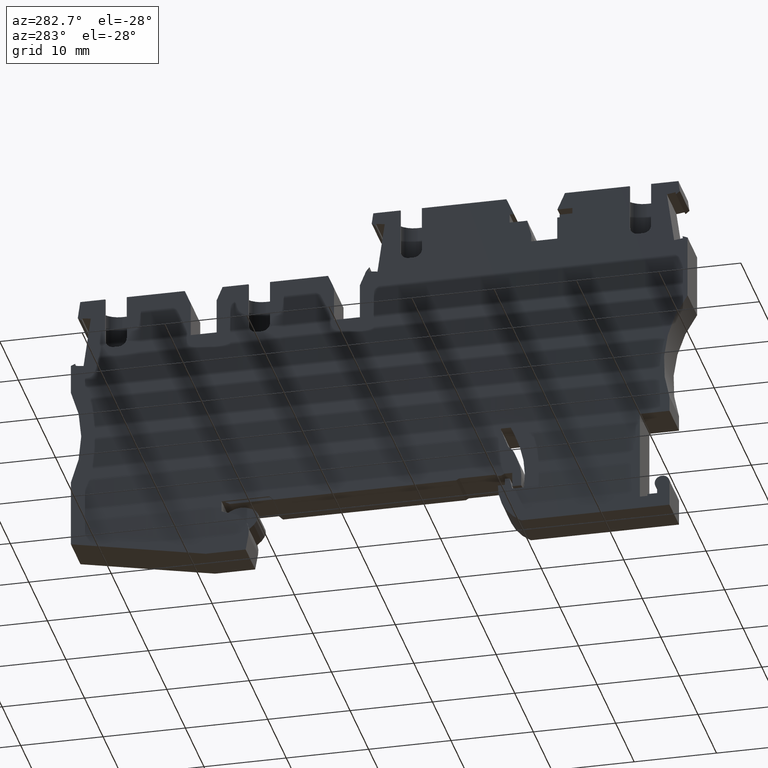
[diagram: clean part render]
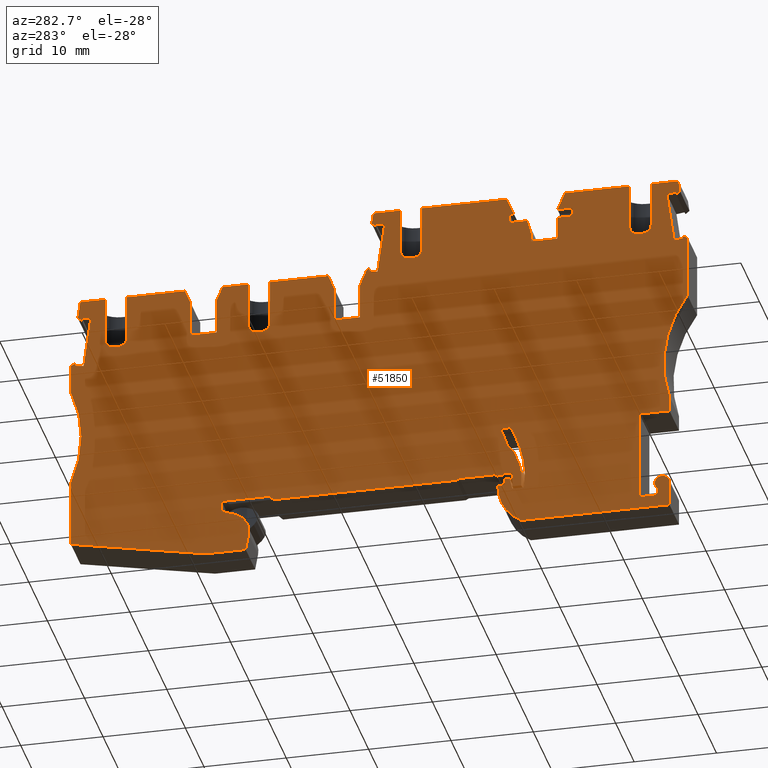
[diagram: same view with one face highlighted and labeled with its STEP entity id]
A machine part, auxiliary view. The second image highlights one B-rep face of the part: STEP entity #51850.
In plain terms, the highlighted planar face has unit normal (-1, 0, -0).
Its self-contained STEP definition (entity closure, byte-faithful):
#670=CARTESIAN_POINT('',(-66.3072917772299,-39.0656998965543,
-1.18280551835652E-12));
#680=VERTEX_POINT('',#670);
#710=CARTESIAN_POINT('',(-76.7749145163171,-6.13186605941077E-11,
-1.42922674073234E-11));
#720=DIRECTION('',(0.258819045104029,-0.965925826288664,
3.24141008728373E-13));
#730=VECTOR('',#720,1.);
#740=LINE('',#710,#730);
#750=CARTESIAN_POINT('',(-67.2464859922436,-35.56057936797,
-2.35982149020631E-12));
#760=VERTEX_POINT('',#750);
#770=EDGE_CURVE('',#760,#680,#740,.T.);
#2160=CARTESIAN_POINT('',(-54.3336256022456,-10.2892881446672,
-1.52343763263781E-11));
#2170=DIRECTION('',(-2.2329608464794E-13,-3.95395672264378E-13,-1.));
#2180=DIRECTION('',(-1.,-1.20342624754661E-12,2.23296084648413E-13));
#2190=AXIS2_PLACEMENT_3D('',#2160,#2170,#2180);
#2200=CIRCLE('',#2190,2.60000000000005);
#2210=CARTESIAN_POINT('',(-51.9772253559505,-9.19048066413703,
-1.619559666754E-11));
#2220=VERTEX_POINT('',#2210);
#2230=CARTESIAN_POINT('',(-52.8423268677303,-12.4190834598169,
-1.47296452839668E-11));
#2240=VERTEX_POINT('',#2230);
#2250=EDGE_CURVE('',#2220,#2240,#2200,.T.);
#3260=CARTESIAN_POINT('',(-4.15699391726855,-39.1542693222888,
-1.50280952131816E-11));
#3270=VERTEX_POINT('',#3260);
#3420=CARTESIAN_POINT('',(9.13878576315922,-35.5916758941949,
-1.94037969802458E-11));
#3430=VERTEX_POINT('',#3420);
#3460=CARTESIAN_POINT('',(6.37588169763637E-11,-38.0404061592044,
-1.6394793251507E-11));
#3470=DIRECTION('',(0.965925826289412,0.258819045101239,
-3.18058962365716E-13));
#3480=VECTOR('',#3470,1.);
#3490=LINE('',#3460,#3480);
#3500=CARTESIAN_POINT('',(5.951753717188,-36.4456385571605,
-1.83544462723363E-11));
#3510=VERTEX_POINT('',#3500);
#3520=EDGE_CURVE('',#3510,#3430,#3490,.T.);
#3920=CARTESIAN_POINT('',(3.44034656883546,-37.1185680744237,
-1.75275493880379E-11));
#3930=VERTEX_POINT('',#3920);
#3960=CARTESIAN_POINT('',(6.37588169763637E-11,-38.0404061592044,
-1.6394793251507E-11));
#3970=DIRECTION('',(0.965925826289412,0.258819045101239,
-3.18058962365716E-13));
#3980=VECTOR('',#3970,1.);
#3990=LINE('',#3960,#3980);
#4000=EDGE_CURVE('',#3270,#3930,#3990,.T.);
#4170=CARTESIAN_POINT('',(0.,-30.0170157611494,-1.95672070917712E-11));
#4180=DIRECTION('',(0.965925826288665,0.258819045104028,
-3.18051140979492E-13));
#4190=VECTOR('',#4180,1.);
#4200=LINE('',#4170,#4190);
#4210=CARTESIAN_POINT('',(-57.583569031116,-45.4464865804351,
-6.06969709237701E-13));
#4220=VERTEX_POINT('',#4210);
#4230=CARTESIAN_POINT('',(-50.7675131667754,-43.6201299160082,
-2.85223652573435E-12));
#4240=VERTEX_POINT('',#4230);
#4250=EDGE_CURVE('',#4220,#4240,#4200,.T.);
#5450=CARTESIAN_POINT('',(-47.9363982468284,-12.5797066825178,
-1.57580845669676E-11));
#5460=VERTEX_POINT('',#5450);
#5910=CARTESIAN_POINT('',(-48.2899516374167,-13.192079118207,
-1.54367570980591E-11));
#5920=VERTEX_POINT('',#5910);
#5950=CARTESIAN_POINT('',(-40.6735012073708,5.28754401036993E-12,
-2.23535716494944E-11));
#5960=DIRECTION('',(0.49999999999878,0.866025403785143,
-4.54088195967764E-13));
#5970=VECTOR('',#5960,1.);
#5980=LINE('',#5950,#5970);
#5990=EDGE_CURVE('',#5920,#5460,#5980,.T.);
#6220=CARTESIAN_POINT('',(-63.8656927570644,-44.9430246976713,
5.95830993172289E-13));
#6230=VERTEX_POINT('',#6220);
#6420=CARTESIAN_POINT('',(-63.0322639274252,-46.9064599777138,
1.1860808690825E-12));
#6430=VERTEX_POINT('',#6420);
#6460=CARTESIAN_POINT('',(-82.9428749055648,-7.11296915247856E-11,
-1.29149860021369E-11));
#6470=DIRECTION('',(0.390731128490712,-0.92050485345183,
2.76703240215985E-13));
#6480=VECTOR('',#6470,1.);
#6490=LINE('',#6460,#6480);
#6500=EDGE_CURVE('',#6230,#6430,#6490,.T.);
#7980=CARTESIAN_POINT('',(-3.10592597299104,5.95482209623501,
-3.30969461049493E-11));
#7990=VERTEX_POINT('',#7980);
#8140=CARTESIAN_POINT('',(-20.497773495418,1.29469059768784,
-3.10920926378808E-11));
#8150=VERTEX_POINT('',#8140);
#8180=CARTESIAN_POINT('',(-7.54074693560925E-12,6.78705245245173,
-3.41193763851504E-11));
#8190=DIRECTION('',(-0.965925826288685,-0.258819045103954,
3.18058962368318E-13));
#8200=VECTOR('',#8190,1.);
#8210=LINE('',#8180,#8200);
#8220=EDGE_CURVE('',#7990,#8150,#8210,.T.);
#9370=CARTESIAN_POINT('',(-64.8774223379133,-38.4646517066796,
-1.73969474311306E-12));
#9380=VERTEX_POINT('',#9370);
#9430=CARTESIAN_POINT('',(2.06321654972215E-11,-10.9258197835096,
-2.71157833596858E-11));
#9440=DIRECTION('',(0.920504853451815,0.390731128490748,
-3.60043747503421E-13));
#9450=VECTOR('',#9440,1.);
#9460=LINE('',#9430,#9450);
#9470=CARTESIAN_POINT('',(-65.8623625311059,-38.8827340141644,
-1.35341464411489E-12));
#9480=VERTEX_POINT('',#9470);
#9490=EDGE_CURVE('',#9480,#9380,#9460,.T.);
#10780=CARTESIAN_POINT('',(2.01684182076864,-31.805976029842,
-1.86857165166418E-11));
#10790=VERTEX_POINT('',#10780);
#10820=CARTESIAN_POINT('',(-6.50554377086673,5.04549122492993E-11,
-4.19169824378261E-11));
#10830=DIRECTION('',(0.258819045101239,-0.965925826289412,
7.34007593844418E-13));
#10840=VECTOR('',#10830,1.);
#10850=LINE('',#10820,#10840);
#10860=EDGE_CURVE('',#10790,#3930,#10850,.T.);
#11090=CARTESIAN_POINT('',(-40.7764596537313,-40.9430351956357,
-6.14071080705768E-12));
#11100=VERTEX_POINT('',#11090);
#11130=CARTESIAN_POINT('',(-51.7471128701437,-2.15083309905912E-11,
-3.72507935261071E-11));
#11140=DIRECTION('',(-0.258819045104028,0.965925826288665,
-7.34007593844365E-13));
#11150=VECTOR('',#11140,1.);
#11160=LINE('',#11130,#11150);
#11170=CARTESIAN_POINT('',(-42.1999644018032,-35.6304431510492,
-7.92357154240665E-12));
#11180=VERTEX_POINT('',#11170);
#11190=EDGE_CURVE('',#11100,#11180,#11160,.T.);
#11540=CARTESIAN_POINT('',(-6.19503037996405,3.57418479438963,
-3.14657990925556E-11));
#11550=VERTEX_POINT('',#11540);
#11720=CARTESIAN_POINT('',(-4.16658614475393,4.11770478910744,
-3.21335454988256E-11));
#11730=VERTEX_POINT('',#11720);
#11760=CARTESIAN_POINT('',(-5.07078513719505E-12,5.23413818179108,
-3.35053608031342E-11));
#11770=DIRECTION('',(-0.965925826288867,-0.258819045103273,
3.18058962367664E-13));
#11780=VECTOR('',#11770,1.);
#11790=LINE('',#11760,#11780);
#11800=EDGE_CURVE('',#11730,#11550,#11790,.T.);
#12110=CARTESIAN_POINT('',(-33.7063787310121,-37.2886432152284,
-9.16538833260796E-12));
#12120=VERTEX_POINT('',#12110);
#12150=CARTESIAN_POINT('',(-28.524722946667,0.,-2.50663462683634E-11));
#12160=DIRECTION('',(0.13763814783106,0.99048257948418,
-4.22370471930833E-13));
#12170=VECTOR('',#12160,1.);
#12180=LINE('',#12150,#12170);
#12190=CARTESIAN_POINT('',(-33.9604037893749,-39.1166785312046,
-8.38503877266139E-12));
#12200=VERTEX_POINT('',#12190);
#12210=EDGE_CURVE('',#12200,#12120,#12180,.T.);
#12610=CARTESIAN_POINT('',(-5.23733045071583,5.24721885165812E-11,
-3.02663298343898E-11));
#12620=DIRECTION('',(-0.25881904510403,0.965925826288664,
-3.24154886516181E-13));
#12630=VECTOR('',#12620,1.);
#12640=LINE('',#12610,#12630);
#12650=CARTESIAN_POINT('',(-3.32213897931943,-7.14759187737682,
-2.78676523120425E-11));
#12660=VERTEX_POINT('',#12650);
#12670=EDGE_CURVE('',#12660,#11550,#12640,.T.);
#13780=CARTESIAN_POINT('',(-51.626410002364,-37.6386135470398,
-5.02460355976195E-12));
#13790=VERTEX_POINT('',#13780);
#13820=CARTESIAN_POINT('',(-61.7116461065775,-3.73583588154697E-11,
-1.76558362652286E-11));
#13830=DIRECTION('',(-0.258819045104125,0.965925826288638,
-3.24154886516179E-13));
#13840=VECTOR('',#13830,1.);
#13850=LINE('',#13820,#13840);
#13860=CARTESIAN_POINT('',(-50.5134881084184,-41.7920946000732,
-3.63176375325995E-12));
#13870=VERTEX_POINT('',#13860);
#13880=EDGE_CURVE('',#13870,#13790,#13850,.T.);
#15800=CARTESIAN_POINT('',(-61.5184809275385,-40.8068240531189,
-1.56295509264935E-12));
#15810=VERTEX_POINT('',#15800);
#15840=CARTESIAN_POINT('',(-72.4526364783043,-5.4443453743595E-11,
-3.10070416566535E-11));
#15850=DIRECTION('',(0.258819045104028,-0.965925826288665,
7.34007593844365E-13));
#15860=VECTOR('',#15850,1.);
#15870=LINE('',#15840,#15860);
#15880=CARTESIAN_POINT('',(-60.0949761794666,-46.1194160977056,
2.19910429232437E-13));
#15890=VERTEX_POINT('',#15880);
#15900=EDGE_CURVE('',#15810,#15890,#15870,.T.);
#16250=CARTESIAN_POINT('',(7.37973791384048,-34.3941953010319,
-1.94843518828348E-11));
#16260=VERTEX_POINT('',#16250);
#16310=CARTESIAN_POINT('',(5.94006079540976E-11,-35.3003131790036,
-1.74782141574794E-11));
#16320=DIRECTION('',(-0.992546151663293,-0.121869343226213,
2.69815985351965E-13));
#16330=VECTOR('',#16320,1.);
#16340=LINE('',#16310,#16330);
#16350=CARTESIAN_POINT('',(8.44176229612051,-34.2637951037798,
-1.97730574577997E-11));
#16360=VERTEX_POINT('',#16350);
#16370=EDGE_CURVE('',#16360,#16260,#16340,.T.);
#16970=CARTESIAN_POINT('',(-57.8293604300129,-3.11830232992264E-11,
-1.85227354562927E-11));
#16980=DIRECTION('',(-0.258819045104057,0.965925826288657,
-3.24141008728372E-13));
#16990=VECTOR('',#16980,1.);
#17000=LINE('',#16970,#16990);
#17010=CARTESIAN_POINT('',(-53.8923214298844,-14.6932295798077,
-1.35922214627188E-11));
#17020=VERTEX_POINT('',#17010);
#17030=CARTESIAN_POINT('',(-54.2395331428368,-13.3974178260841,
-1.40266638355378E-11));
#17040=VERTEX_POINT('',#17030);
#17050=EDGE_CURVE('',#17020,#17040,#17000,.T.);
#17500=CARTESIAN_POINT('',(8.22392023425579,-27.8645245092209,
-2.22539965207364E-11));
#17510=VERTEX_POINT('',#17500);
#17660=CARTESIAN_POINT('',(6.2156364476726,-20.3695073817224,
-2.47702582245734E-11));
#17670=VERTEX_POINT('',#17660);
#17700=CARTESIAN_POINT('',(0.757643394469592,6.20080593899176E-11,
-3.16049840215903E-11));
#17710=DIRECTION('',(-0.258819045104028,0.965925826288665,
-3.24154886516181E-13));
#17720=VECTOR('',#17710,1.);
#17730=LINE('',#17700,#17720);
#17740=EDGE_CURVE('',#17510,#17670,#17730,.T.);
#18220=CARTESIAN_POINT('',(2.20320066644167E-11,-0.252825574344335,
-3.13358390800928E-11));
#18230=DIRECTION('',(0.965925826288704,0.258819045103883,
-3.18037263192438E-13));
#18240=VECTOR('',#18230,1.);
#18250=LINE('',#18220,#18240);
#18260=EDGE_CURVE('',#17020,#5920,#18250,.T.);
#18470=CARTESIAN_POINT('',(-65.7559634670107,-39.1333945010332,
-1.27915241294333E-12));
#18480=VERTEX_POINT('',#18470);
#18530=CARTESIAN_POINT('',(7.83389259262135E-11,-47.2072116015176,
-1.27702780511301E-11));
#18540=DIRECTION('',(0.992546151642362,-0.121869343396678,
-1.73433008744903E-13));
#18550=VECTOR('',#18540,1.);
#18560=LINE('',#18530,#18550);
#18570=EDGE_CURVE('',#680,#18480,#18560,.T.);
#18900=CARTESIAN_POINT('',(-29.9986944722451,1.30856663974548E-11,
-2.47372141978244E-11));
#18910=DIRECTION('',(-0.601815023152154,-0.798635510047214,
4.50205637892676E-13));
#18920=VECTOR('',#18910,1.);
#18930=LINE('',#18900,#18920);
#18940=CARTESIAN_POINT('',(-63.497387207508,-44.4542667253587,
3.20332673143683E-13));
#18950=VERTEX_POINT('',#18940);
#18960=EDGE_CURVE('',#18950,#6230,#18930,.T.);
#20690=CARTESIAN_POINT('',(-82.3671039055547,-7.02138446753257E-11,
-1.30435534120933E-11));
#20700=DIRECTION('',(-0.390731128491066,0.92050485345168,
-2.76730995791544E-13));
#20710=VECTOR('',#20700,1.);
#20720=LINE('',#20690,#20710);
#20730=EDGE_CURVE('',#18480,#9480,#20720,.T.);
#21050=CARTESIAN_POINT('',(-29.480481261624,-37.9926777771836,
-9.83221835022751E-12));
#21060=VERTEX_POINT('',#21050);
#21090=CARTESIAN_POINT('',(-59.0689021885233,-3.31546933108906E-11,
-1.8245950634859E-11));
#21100=DIRECTION('',(0.614439422298695,-0.788964001919762,
1.74742521169848E-13));
#21110=VECTOR('',#21100,1.);
#21120=LINE('',#21090,#21110);
#21130=CARTESIAN_POINT('',(-30.6637123782411,-36.4733632230008,
-1.01673083318337E-11));
#21140=VERTEX_POINT('',#21130);
#21150=EDGE_CURVE('',#21140,#21060,#21120,.T.);
#21520=CARTESIAN_POINT('',(-29.1793945218323,-37.8599577219028,
-9.95028167847463E-12));
#21530=VERTEX_POINT('',#21520);
#21560=CARTESIAN_POINT('',(-45.2499931176275,-1.11737246005319E-11,
-2.13316589245045E-11));
#21570=DIRECTION('',(-0.390731128491166,0.920504853451638,
-2.76730995791529E-13));
#21580=VECTOR('',#21570,1.);
#21590=LINE('',#21560,#21580);
#21600=CARTESIAN_POINT('',(-28.9603630326207,-38.3759635739488,
-9.79480696546769E-12));
#21610=VERTEX_POINT('',#21600);
#21620=EDGE_CURVE('',#21610,#21530,#21590,.T.);
#21890=CARTESIAN_POINT('',(-28.1944543286396,-37.4418754144181,
-1.03342765742764E-11));
#21900=VERTEX_POINT('',#21890);
#21950=CARTESIAN_POINT('',(4.37715929906632E-11,-25.4740395950685,
-2.13634802070496E-11));
#21960=DIRECTION('',(0.920504853451834,0.390731128490704,
-3.60071503078993E-13));
#21970=VECTOR('',#21960,1.);
#21980=LINE('',#21950,#21970);
#21990=EDGE_CURVE('',#21530,#21900,#21980,.T.);
#22510=CARTESIAN_POINT('',(-25.7230799409385,-43.2640686124993,
-8.58382748304589E-12));
#22520=VERTEX_POINT('',#22510);
#22570=CARTESIAN_POINT('',(-44.0875875137703,-9.3247507722764E-12,
-2.15912195446193E-11));
#22580=DIRECTION('',(0.390731128490453,-0.92050485345194,
2.76730995791642E-13));
#22590=VECTOR('',#22580,1.);
#22600=LINE('',#22570,#22590);
#22610=EDGE_CURVE('',#21900,#22520,#22600,.T.);
#22850=CARTESIAN_POINT('',(-15.6289151259346,3.59428737620542E-11,
-2.79459296631194E-11));
#22860=DIRECTION('',(0.258819045101127,-0.965925826289442,
3.24154886516235E-13));
#22870=VECTOR('',#22860,1.);
#22880=LINE('',#22850,#22870);
#22890=CARTESIAN_POINT('',(-6.62478906012128,-33.6038559555285,
-1.66696965430695E-11));
#22900=VERTEX_POINT('',#22890);
#22910=CARTESIAN_POINT('',(-5.8936252577333,-36.3325964147114,
-1.57540303890844E-11));
#22920=VERTEX_POINT('',#22910);
#22930=EDGE_CURVE('',#22900,#22920,#22880,.T.);
#23700=CARTESIAN_POINT('',(7.70412465115847,-28.2562185759363,
-2.19830961256061E-11));
#23710=VERTEX_POINT('',#23700);
#23760=CARTESIAN_POINT('',(4.23469726573012,6.75388152517806E-11,
-3.23813965371549E-11));
#23770=DIRECTION('',(0.121869343225106,-0.992546151663429,
3.65229029105853E-13));
#23780=VECTOR('',#23770,1.);
#23790=LINE('',#23760,#23780);
#23800=CARTESIAN_POINT('',(7.67093870021586,-27.9859406945126,
-2.20831270400946E-11));
#23810=VERTEX_POINT('',#23800);
#23820=EDGE_CURVE('',#23810,#23710,#23790,.T.);
#24180=CARTESIAN_POINT('',(-9.66745541293137,-34.4191359476067,
-1.5667922879047E-11));
#24190=VERTEX_POINT('',#24180);
#24220=CARTESIAN_POINT('',(-18.8900350942248,3.0755591928448E-11,
-2.72177343426309E-11));
#24230=DIRECTION('',(-0.258819045101132,0.965925826289441,
-3.24141008728427E-13));
#24240=VECTOR('',#24230,1.);
#24250=LINE('',#24220,#24240);
#24260=CARTESIAN_POINT('',(-9.41925452369259,-35.3454342767359,
-1.5357090815252E-11));
#24270=VERTEX_POINT('',#24260);
#24280=EDGE_CURVE('',#24270,#24190,#24250,.T.);
#24720=CARTESIAN_POINT('',(-82.0786849123782,-33.3231980429492,
6.8049416111935E-14));
#24730=DIRECTION('',(-2.23296203822727E-13,-3.95395569460147E-13,-1.));
#24740=DIRECTION('',(0.965925826287002,0.258819045110233,
-3.18023385406397E-13));
#24750=AXIS2_PLACEMENT_3D('',#24720,#24730,#24740);
#24760=CIRCLE('',#24750,14.9999999999998);
#24770=CARTESIAN_POINT('',(-70.3523145390098,-23.9694694886998,
-6.24898433322459E-12));
#24780=VERTEX_POINT('',#24770);
#24790=EDGE_CURVE('',#24780,#760,#24760,.T.);
#25460=CARTESIAN_POINT('',(-26.8144191982348,-43.4314904330974,
-8.27524087026391E-12));
#25470=VERTEX_POINT('',#25460);
#25520=CARTESIAN_POINT('',(-45.2499931175529,-1.11737246004133E-11,
-2.13316589245212E-11));
#25530=DIRECTION('',(-0.390731128489717,0.920504853452253,
-2.76703240216144E-13));
#25540=VECTOR('',#25530,1.);
#25550=LINE('',#25520,#25540);
#25560=CARTESIAN_POINT('',(-26.7080201341325,-43.6821509199839,
-8.20007816595971E-12));
#25570=VERTEX_POINT('',#25560);
#25580=EDGE_CURVE('',#25570,#25470,#25550,.T.);
#26940=CARTESIAN_POINT('',(-23.5975301643985,-37.6340501375103,
-1.12862541157936E-11));
#26950=VERTEX_POINT('',#26940);
#27460=CARTESIAN_POINT('',(5.47005118723648E-11,-32.3452689821722,
-1.86466258442555E-11));
#27470=DIRECTION('',(-0.920504853452067,-0.390731128490155,
3.60071503078448E-13));
#27480=VECTOR('',#27470,1.);
#27490=LINE('',#27460,#27480);
#27500=EDGE_CURVE('',#22520,#25570,#27490,.T.);
#27730=CARTESIAN_POINT('',(-24.1770856601667,-37.7893415645738,
-1.10956632910058E-11));
#27740=VERTEX_POINT('',#27730);
#31060=CARTESIAN_POINT('',(-27.1827247478039,-43.9202484054269,
-7.99841824241426E-12));
#31070=VERTEX_POINT('',#31060);
#31220=CARTESIAN_POINT('',(-26.6477197686101,-45.1806411513829,
-7.6194797115734E-12));
#31230=VERTEX_POINT('',#31220);
#31260=CARTESIAN_POINT('',(-45.8257641176508,-1.20895714500129E-11,
-2.12030915145451E-11));
#31270=DIRECTION('',(0.390731128490663,-0.920504853451851,
2.76730995791608E-13));
#31280=VECTOR('',#31270,1.);
#31290=LINE('',#31260,#31280);
#31300=EDGE_CURVE('',#31070,#31230,#31290,.T.);
#31470=CARTESIAN_POINT('',(5.91355631969951,7.0209282807872E-11,
-3.2756279190583E-11));
#31480=DIRECTION('',(-0.601815023152285,-0.798635510047115,
4.5020563789256E-13));
#31490=VECTOR('',#31480,1.);
#31500=LINE('',#31470,#31490);
#31510=EDGE_CURVE('',#25470,#31070,#31500,.T.);
#32740=CARTESIAN_POINT('',(-43.4247092731898,-34.9233363698867,
-7.93070159872241E-12));
#32750=VERTEX_POINT('',#32740);
#33680=CARTESIAN_POINT('',(-20.949280544935,-43.6537489632777,
-9.49615510115022E-12));
#33690=VERTEX_POINT('',#33680);
#33720=CARTESIAN_POINT('',(-32.6462673263058,8.87431977340746E-12,
-4.26688768891587E-11));
#33730=DIRECTION('',(-0.258819045103907,0.965925826288697,
-7.34007593844368E-13));
#33740=VECTOR('',#33730,1.);
#33750=LINE('',#33720,#33740);
#33760=CARTESIAN_POINT('',(-22.3727852930111,-38.3411569186726,
-1.12790206230381E-11));
#33770=VERTEX_POINT('',#33760);
#33780=EDGE_CURVE('',#33690,#33770,#33750,.T.);
#34020=CARTESIAN_POINT('',(-35.5516625542373,4.25286946437677E-12,
-2.34972581669371E-11));
#34030=DIRECTION('',(0.625560376221025,-0.780175759494109,
1.68784405251471E-13));
#34040=VECTOR('',#34030,1.);
#34050=LINE('',#34020,#34040);
#34060=CARTESIAN_POINT('',(-5.59534043802425,-37.3604167512145,
-1.54161098537917E-11));
#34070=VERTEX_POINT('',#34060);
#34080=EDGE_CURVE('',#34070,#3270,#34050,.T.);
#34630=CARTESIAN_POINT('',(-3.06325047185437,5.59303764056541E-11,
-3.07517933813825E-11));
#34640=DIRECTION('',(-0.258819045103274,0.965925826288867,
-3.24154886516195E-13));
#34650=VECTOR('',#34640,1.);
#34660=LINE('',#34630,#34650);
#34670=CARTESIAN_POINT('',(-3.92609676620693,3.22018620969219,
-3.18323707329678E-11));
#34680=VERTEX_POINT('',#34670);
#34690=EDGE_CURVE('',#34680,#11730,#34660,.T.);
#34950=CARTESIAN_POINT('',(9.82368752660702E-11,-59.7174494143392,
-7.82378416094665E-12));
#34960=DIRECTION('',(0.805025689294699,-0.593239951095335,
5.47969599890905E-14));
#34970=VECTOR('',#34960,1.);
#34980=LINE('',#34950,#34970);
#34990=EDGE_CURVE('',#21060,#21610,#34980,.T.);
#35200=CARTESIAN_POINT('',(-48.5837436495426,-36.8233335549484,
-6.02745875754752E-12));
#35210=VERTEX_POINT('',#35200);
#35240=CARTESIAN_POINT('',(4.11175004914816E-11,-23.805358678514,
-2.20232694198449E-11));
#35250=DIRECTION('',(0.965925826287837,0.258819045107118,
-3.18072840159158E-13));
#35260=VECTOR('',#35250,1.);
#35270=LINE('',#35240,#35260);
#35280=EDGE_CURVE('',#13790,#35210,#35270,.T.);
#35520=CARTESIAN_POINT('',(-56.2628168717692,-2.05741352510624E-11,
-1.88720173931634E-11));
#35530=DIRECTION('',(-0.422618261741977,0.906307787036055,
-2.63981173585861E-13));
#35540=VECTOR('',#35530,1.);
#35550=LINE('',#35520,#35540);
#35560=CARTESIAN_POINT('',(-52.8270967988237,-7.36792547335862,
-1.67264583720757E-11));
#35570=VERTEX_POINT('',#35560);
#35580=EDGE_CURVE('',#2220,#35570,#35550,.T.);
#36300=CARTESIAN_POINT('',(-1.51033620123954,5.84005106121339E-11,
-3.10985530578056E-11));
#36310=DIRECTION('',(0.25881904510403,-0.965925826288664,
3.24154886516181E-13));
#36320=VECTOR('',#36310,1.);
#36330=LINE('',#36300,#36320);
#36340=CARTESIAN_POINT('',(-2.30358693315759,2.96045203469923,
-3.20920582653293E-11));
#36350=VERTEX_POINT('',#36340);
#36360=EDGE_CURVE('',#7990,#36350,#36330,.T.);
#37260=CARTESIAN_POINT('',(-23.4606876932862,-44.3266784805459,
-8.66987454040216E-12));
#37270=VERTEX_POINT('',#37260);
#37440=CARTESIAN_POINT('',(-24.8841924413642,-39.0140864359435,
-8.14265637588515E-12));
#37450=VERTEX_POINT('',#37440);
#37480=CARTESIAN_POINT('',(-35.3379853953719,4.59275381551158E-12,
-3.85377288670374E-11));
#37490=DIRECTION('',(0.258819045103907,-0.965925826288697,
7.34007593844368E-13));
#37500=VECTOR('',#37490,1.);
#37510=LINE('',#37480,#37500);
#37520=EDGE_CURVE('',#37450,#37270,#37510,.T.);
#37780=CARTESIAN_POINT('',(-40.4367205992762,-3.51752018689008E-12,
-2.24064438321989E-11));
#37790=DIRECTION('',(-0.258819045107117,0.965925826287837,
-3.24127130940507E-13));
#37800=VECTOR('',#37790,1.);
#37810=LINE('',#37780,#37800);
#37820=CARTESIAN_POINT('',(-31.7766342721531,-32.3198821701446,
-1.1560152572021E-11));
#37830=VERTEX_POINT('',#37820);
#37840=EDGE_CURVE('',#21140,#37830,#37810,.T.);
#38320=CARTESIAN_POINT('',(-21.9491677461115,-4.27059022176907,
-2.64111756305503E-11));
#38330=VERTEX_POINT('',#38320);
#38360=CARTESIAN_POINT('',(-16.6412518939016,-2.6829669425937,
-2.6659323117793E-11));
#38370=DIRECTION('',(2.22104378111124E-13,-8.99016273766942E-13,-1.));
#38380=DIRECTION('',(0.965925826288657,0.258819045104057,
-1.8146090053739E-14));
#38390=AXIS2_PLACEMENT_3D('',#38360,#38370,#38380);
#38400=CIRCLE('',#38390,5.54026338459836);
#38410=EDGE_CURVE('',#38330,#8150,#38400,.T.);
#38930=CARTESIAN_POINT('',(6.37588169763253E-11,-38.0404061591803,
-1.63947932515166E-11));
#38940=DIRECTION('',(0.965925826288697,0.258819045103907,
-3.18045084580466E-13));
#38950=VECTOR('',#38940,1.);
#38960=LINE('',#38930,#38950);
#38970=EDGE_CURVE('',#31230,#37270,#38960,.T.);
#39120=CARTESIAN_POINT('',(-11.0337181041734,-40.9968820147683,
-1.27620119503425E-11));
#39130=VERTEX_POINT('',#39120);
#39160=CARTESIAN_POINT('',(6.37588169763253E-11,-38.0404061591803,
-1.63947932515166E-11));
#39170=DIRECTION('',(0.965925826288697,0.258819045103907,
-3.18045084580466E-13));
#39180=VECTOR('',#39170,1.);
#39190=LINE('',#39160,#39180);
#39200=EDGE_CURVE('',#33690,#39130,#39190,.T.);
#39510=CARTESIAN_POINT('',(-11.4718469045595,-37.8272764001842,
-1.39163583834706E-11));
#39520=VERTEX_POINT('',#39510);
#39550=CARTESIAN_POINT('',(-21.6076350678063,2.64328570670995E-11,
-2.66109049088892E-11));
#39560=DIRECTION('',(-0.258819045101127,0.965925826289442,
-3.24154886516235E-13));
#39570=VECTOR('',#39560,1.);
#39580=LINE('',#39550,#39570);
#39590=CARTESIAN_POINT('',(-11.1949105263014,-38.8608170343135,
-1.35695100001228E-11));
#39600=VERTEX_POINT('',#39590);
#39610=EDGE_CURVE('',#39600,#39520,#39580,.T.);
#40840=CARTESIAN_POINT('',(-2.76537139235481E-11,19.4324761512919,
-3.91193221896167E-11));
#40850=DIRECTION('',(-0.89879404629838,-0.438371146790693,
3.74055214397565E-13));
#40860=VECTOR('',#40850,1.);
#40870=LINE('',#40840,#40860);
#40880=CARTESIAN_POINT('',(-57.5358462978622,-8.62963109900643,
-1.51757160820912E-11));
#40890=VERTEX_POINT('',#40880);
#40900=CARTESIAN_POINT('',(-72.5061760776159,-15.9311487942036,
-8.94579677768582E-12));
#40910=VERTEX_POINT('',#40900);
#40920=EDGE_CURVE('',#40890,#40910,#40870,.T.);
#41320=CARTESIAN_POINT('',(-3.81382570180257,5.4736478207192E-11,
-4.60481304599442E-11));
#41330=DIRECTION('',(-0.258819045101239,0.965925826289412,
-7.34007593844418E-13));
#41340=VECTOR('',#41330,1.);
#41350=LINE('',#41320,#41340);
#41360=CARTESIAN_POINT('',(4.52824896911934,-31.1330465125721,
-2.07615699366275E-11));
#41370=VERTEX_POINT('',#41360);
#41380=EDGE_CURVE('',#3510,#41370,#41350,.T.);
#42680=CARTESIAN_POINT('',(-63.3909881434058,-44.7049272122453,
3.95757269175929E-13));
#42690=VERTEX_POINT('',#42680);
#42720=CARTESIAN_POINT('',(3.15610843789641E-11,-17.797049170639,
-2.43989289968814E-11));
#42730=DIRECTION('',(-0.920504853452046,-0.390731128490203,
3.60071503078495E-13));
#42740=VECTOR('',#42730,1.);
#42750=LINE('',#42720,#42740);
#42760=CARTESIAN_POINT('',(-62.4060479502118,-44.2868449047607,
1.05087694078477E-14));
#42770=VERTEX_POINT('',#42760);
#42780=EDGE_CURVE('',#42770,#42690,#42750,.T.);
#43850=CARTESIAN_POINT('',(3.30350409772378,-30.425939731388,
-2.05515757307838E-11));
#43860=VERTEX_POINT('',#43850);
#44130=CARTESIAN_POINT('',(5.38789697831116E-11,-31.8287490768162,
-1.88508555794714E-11));
#44140=DIRECTION('',(0.965925826288639,0.258819045104125,
-3.18058962368483E-13));
#44150=VECTOR('',#44140,1.);
#44160=LINE('',#44130,#44150);
#44170=EDGE_CURVE('',#24190,#22900,#44160,.T.);
#44870=CARTESIAN_POINT('',(-43.287866802082,-41.6159647129062,
-5.31377784051093E-12));
#44880=VERTEX_POINT('',#44870);
#45050=CARTESIAN_POINT('',(-44.7113715501555,-36.3033726683199,
-4.78712940374449E-12));
#45060=VERTEX_POINT('',#45050);
#45090=CARTESIAN_POINT('',(-54.4388309392101,-2.57898969484875E-11,
-3.31196455039854E-11));
#45100=DIRECTION('',(0.258819045104028,-0.965925826288665,
7.34007593844365E-13));
#45110=VECTOR('',#45100,1.);
#45120=LINE('',#45090,#45110);
#45130=EDGE_CURVE('',#45060,#44880,#45120,.T.);
#45390=CARTESIAN_POINT('',(-9.4192545237488,4.58202348980403E-11,
-2.9332522562584E-11));
#45400=DIRECTION('',(-1.59053326064381E-12,1.,-3.95395672264023E-13));
#45410=VECTOR('',#45400,1.);
#45420=LINE('',#45390,#45410);
#45430=CARTESIAN_POINT('',(-9.41925452368951,-37.2772859293366,
-1.45932450323576E-11));
#45440=VERTEX_POINT('',#45430);
#45450=EDGE_CURVE('',#45440,#24270,#45420,.T.);
#45850=CARTESIAN_POINT('',(-46.3368119438312,-42.4329271014098,
-4.30984932475406E-12));
#45860=VERTEX_POINT('',#45850);
#45960=CARTESIAN_POINT('',(0.,-30.0170157611499,-1.95672070917711E-11));
#45970=DIRECTION('',(0.965925826288664,0.258819045104028,
-3.18051140979492E-13));
#45980=VECTOR('',#45970,1.);
#45990=LINE('',#45960,#45980);
#46000=EDGE_CURVE('',#11100,#12200,#45990,.T.);
#46200=CARTESIAN_POINT('',(0.,-30.0170157611499,-1.95672070917711E-11));
#46210=DIRECTION('',(0.965925826288664,0.258819045104028,
-3.18051140979492E-13));
#46220=VECTOR('',#46210,1.);
#46230=LINE('',#46200,#46220);
#46240=EDGE_CURVE('',#45860,#44880,#46230,.T.);
#46530=CARTESIAN_POINT('',(-44.7060295888247,0.,-2.14531238506819E-11));
#46540=DIRECTION('',(0.137638147831061,0.99048257948418,
-4.22370471930833E-13));
#46550=VECTOR('',#46540,1.);
#46560=LINE('',#46530,#46550);
#46570=EDGE_CURVE('',#4240,#13870,#46560,.T.);
#46690=CARTESIAN_POINT('',(-14.5596329296552,-10.1719111404203,
-2.41627665473381E-11));
#46700=DIRECTION('',(-2.23296084647939E-13,-3.95395672264378E-13,-1.));
#46710=DIRECTION('',(0.965925826288657,0.258819045104057,
-3.18023385404325E-13));
#46720=AXIS2_PLACEMENT_3D('',#46690,#46700,#46710);
#46730=PLANE('',#46720);
#46740=ORIENTED_EDGE('',*,*,#46240,.F.);
#46750=ORIENTED_EDGE('',*,*,#45130,.T.);
#46760=CARTESIAN_POINT('',(-43.7454457238668,-36.0445536232159,
-7.4157579553821E-12));
#46770=DIRECTION('',(-2.34946865829076E-12,-1.38790441945422E-12,-1.));
#46780=DIRECTION('',(0.92718385456626,0.374606593417219,
-2.6983074813513E-12));
#46790=AXIS2_PLACEMENT_3D('',#46760,#46770,#46780);
#46800=CIRCLE('',#46790,1.);
#46810=CARTESIAN_POINT('',(-44.0042647689646,-35.0786277969256,
-8.14828344392953E-12));
#46820=VERTEX_POINT('',#46810);
#46830=EDGE_CURVE('',#45060,#46820,#46800,.T.);
#46840=ORIENTED_EDGE('',*,*,#46830,.F.);
#46850=CARTESIAN_POINT('',(4.02941798920465E-11,-23.2877205883165,
-2.22279412805079E-11));
#46860=DIRECTION('',(-0.965925826287668,-0.258819045107748,
3.18017329008744E-13));
#46870=VECTOR('',#46860,1.);
#46880=LINE('',#46850,#46870);
#46890=EDGE_CURVE('',#32750,#46820,#46880,.T.);
#46900=ORIENTED_EDGE('',*,*,#46890,.T.);
#46910=CARTESIAN_POINT('',(-43.1658902280936,-35.8892621961536,
-7.60657198662465E-12));
#46920=DIRECTION('',(-2.34946865829076E-12,-1.38790441945422E-12,-1.));
#46930=DIRECTION('',(0.92718385456626,0.374606593417219,
-2.6983074813513E-12));
#46940=AXIS2_PLACEMENT_3D('',#46910,#46920,#46930);
#46950=CIRCLE('',#46940,1.);
#46960=EDGE_CURVE('',#32750,#11180,#46950,.T.);
#46970=ORIENTED_EDGE('',*,*,#46960,.F.);
#46980=ORIENTED_EDGE('',*,*,#11190,.T.);
#46990=ORIENTED_EDGE('',*,*,#46000,.F.);
#47000=ORIENTED_EDGE('',*,*,#12210,.F.);
#47010=CARTESIAN_POINT('',(-43.6978405675726,-8.70480202050607E-12,
-2.16782485117091E-11));
#47020=DIRECTION('',(0.258819045107117,-0.965925826287837,
3.24127130940507E-13));
#47030=VECTOR('',#47020,1.);
#47040=LINE('',#47010,#47030);
#47050=CARTESIAN_POINT('',(-34.8193006249615,-33.1351621622326,
-1.05592919995131E-11));
#47060=VERTEX_POINT('',#47050);
#47070=EDGE_CURVE('',#47060,#12120,#47040,.T.);
#47080=ORIENTED_EDGE('',*,*,#47070,.T.);
#47090=CARTESIAN_POINT('',(4.11175004915692E-11,-23.805358678569,
-2.20232694198231E-11));
#47100=DIRECTION('',(0.965925826287837,0.258819045107117,
-3.18045084583541E-13));
#47110=VECTOR('',#47100,1.);
#47120=LINE('',#47090,#47110);
#47130=EDGE_CURVE('',#47060,#37830,#47120,.T.);
#47140=ORIENTED_EDGE('',*,*,#47130,.F.);
#47150=ORIENTED_EDGE('',*,*,#37840,.T.);
#47160=ORIENTED_EDGE('',*,*,#21150,.F.);
#47170=ORIENTED_EDGE('',*,*,#34990,.F.);
#47180=ORIENTED_EDGE('',*,*,#21620,.F.);
#47190=ORIENTED_EDGE('',*,*,#21990,.F.);
#47200=ORIENTED_EDGE('',*,*,#22610,.F.);
#47210=ORIENTED_EDGE('',*,*,#27500,.F.);
#47220=ORIENTED_EDGE('',*,*,#25580,.F.);
#47230=ORIENTED_EDGE('',*,*,#31510,.F.);
#47240=ORIENTED_EDGE('',*,*,#31300,.F.);
#47250=ORIENTED_EDGE('',*,*,#38970,.F.);
#47260=ORIENTED_EDGE('',*,*,#37520,.T.);
#47270=CARTESIAN_POINT('',(-23.9182666150755,-38.7552673908395,
-1.07712849275227E-11));
#47280=DIRECTION('',(-2.34946865829076E-12,-1.38790441945422E-12,-1.));
#47290=DIRECTION('',(0.92718385456626,0.374606593417219,
-2.6983074813513E-12));
#47300=AXIS2_PLACEMENT_3D('',#47270,#47280,#47290);
#47310=CIRCLE('',#47300,1.);
#47320=EDGE_CURVE('',#37450,#27740,#47310,.T.);
#47330=ORIENTED_EDGE('',*,*,#47320,.F.);
#47340=CARTESIAN_POINT('',(5.30556491833914E-11,-31.3111109864396,
-1.90555274402053E-11));
#47350=DIRECTION('',(-0.965925826287668,-0.258819045107748,
3.18017329008744E-13));
#47360=VECTOR('',#47350,1.);
#47370=LINE('',#47340,#47360);
#47380=EDGE_CURVE('',#26950,#27740,#47370,.T.);
#47390=ORIENTED_EDGE('',*,*,#47380,.T.);
#47400=CARTESIAN_POINT('',(-23.3387111193023,-38.5999759637772,
-1.09620989587654E-11));
#47410=DIRECTION('',(-2.34946865829076E-12,-1.38790441945422E-12,-1.));
#47420=DIRECTION('',(0.92718385456626,0.374606593417219,
-2.6983074813513E-12));
#47430=AXIS2_PLACEMENT_3D('',#47400,#47410,#47420);
#47440=CIRCLE('',#47430,1.);
#47450=EDGE_CURVE('',#26950,#33770,#47440,.T.);
#47460=ORIENTED_EDGE('',*,*,#47450,.F.);
#47470=ORIENTED_EDGE('',*,*,#33780,.T.);
#47480=ORIENTED_EDGE('',*,*,#39200,.F.);
#47490=CARTESIAN_POINT('',(-4.74322875707416,5.3258128550773E-11,
-3.03766608079982E-11));
#47500=DIRECTION('',(0.151663297665015,0.98843221524866,
-4.24692470536592E-13));
#47510=VECTOR('',#47500,1.);
#47520=LINE('',#47490,#47510);
#47530=CARTESIAN_POINT('',(-10.6849997632752,-38.7241868571495,
-1.37384941898327E-11));
#47540=VERTEX_POINT('',#47530);
#47550=EDGE_CURVE('',#39130,#47540,#47520,.T.);
#47560=ORIENTED_EDGE('',*,*,#47550,.F.);
#47570=CARTESIAN_POINT('',(6.02926372527106E-11,-35.8611497994537,
-1.72564617849063E-11));
#47580=DIRECTION('',(-0.965925826289446,-0.258819045101112,
3.18045084577787E-13));
#47590=VECTOR('',#47580,1.);
#47600=LINE('',#47570,#47590);
#47610=EDGE_CURVE('',#47540,#39600,#47600,.T.);
#47620=ORIENTED_EDGE('',*,*,#47610,.F.);
#47630=ORIENTED_EDGE('',*,*,#39610,.F.);
#47640=CARTESIAN_POINT('',(5.8530731169839E-11,-34.7534042863806,
-1.76944595667452E-11));
#47650=DIRECTION('',(0.965925826288698,0.258819045103906,
-3.18045084580464E-13));
#47660=VECTOR('',#47650,1.);
#47670=LINE('',#47640,#47660);
#47680=EDGE_CURVE('',#39520,#45440,#47670,.T.);
#47690=ORIENTED_EDGE('',*,*,#47680,.F.);
#47700=ORIENTED_EDGE('',*,*,#45450,.F.);
#47710=ORIENTED_EDGE('',*,*,#24280,.F.);
#47720=ORIENTED_EDGE('',*,*,#44170,.F.);
#47730=ORIENTED_EDGE('',*,*,#22930,.F.);
#47740=CARTESIAN_POINT('',(4.64720376031052E-11,-34.7534042863893,
-1.76944595667391E-11));
#47750=DIRECTION('',(-0.965925826288726,-0.258819045103798,
3.17981752040843E-13));
#47760=VECTOR('',#47750,1.);
#47770=LINE('',#47740,#47760);
#47780=CARTESIAN_POINT('',(-4.11873653778486,-35.8570164155436,
-1.63383983644204E-11));
#47790=VERTEX_POINT('',#47780);
#47800=EDGE_CURVE('',#47790,#22920,#47770,.T.);
#47810=ORIENTED_EDGE('',*,*,#47800,.T.);
#47820=CARTESIAN_POINT('',(-13.7265951293742,3.23194480952895E-11,
-2.83707102700974E-11));
#47830=DIRECTION('',(-0.258819045103683,0.965925826288757,
-3.24143489826743E-13));
#47840=VECTOR('',#47830,1.);
#47850=LINE('',#47820,#47840);
#47860=CARTESIAN_POINT('',(-3.84180015951896,-36.8905570496911,
-1.59905196409343E-11));
#47870=VERTEX_POINT('',#47860);
#47880=EDGE_CURVE('',#47870,#47790,#47850,.T.);
#47890=ORIENTED_EDGE('',*,*,#47880,.T.);
#47900=CARTESIAN_POINT('',(4.7805189121346E-11,-35.8611497994479,
-1.72564617849057E-11));
#47910=DIRECTION('',(0.965925826288724,0.258819045103805,
-3.1799562982865E-13));
#47920=VECTOR('',#47910,1.);
#47930=LINE('',#47900,#47920);
#47940=EDGE_CURVE('',#34070,#47870,#47930,.T.);
#47950=ORIENTED_EDGE('',*,*,#47940,.T.);
#47960=ORIENTED_EDGE('',*,*,#34080,.F.);
#47970=ORIENTED_EDGE('',*,*,#4000,.F.);
#47980=ORIENTED_EDGE('',*,*,#10860,.T.);
#47990=CARTESIAN_POINT('',(2.98276764705737,-31.5471569847382,
-1.96282362110134E-11));
#48000=DIRECTION('',(7.20812567123506E-13,9.51507335075469E-13,1.));
#48010=DIRECTION('',(-0.990268068741375,-0.139173100961461,
8.46221791472532E-13));
#48020=AXIS2_PLACEMENT_3D('',#47990,#48000,#48010);
#48030=CIRCLE('',#48020,1.);
#48040=CARTESIAN_POINT('',(2.72394860195411,-30.5812311584487,
-1.99523145713531E-11));
#48050=VERTEX_POINT('',#48040);
#48060=EDGE_CURVE('',#48050,#10790,#48030,.T.);
#48070=ORIENTED_EDGE('',*,*,#48060,.T.);
#48080=CARTESIAN_POINT('',(5.30556491835817E-11,-31.3111109865593,
-1.9055527440158E-11));
#48090=DIRECTION('',(0.965925826288424,0.258819045104927,
-3.18017329006039E-13));
#48100=VECTOR('',#48090,1.);
#48110=LINE('',#48080,#48100);
#48120=EDGE_CURVE('',#48050,#43860,#48110,.T.);
#48130=ORIENTED_EDGE('',*,*,#48120,.F.);
#48140=CARTESIAN_POINT('',(3.5623231428306,-31.3918655576759,
-1.98190502422559E-11));
#48150=DIRECTION('',(7.20812567123506E-13,9.51507335075469E-13,1.));
#48160=DIRECTION('',(-0.990268068741375,-0.139173100961461,
8.46221791472532E-13));
#48170=AXIS2_PLACEMENT_3D('',#48140,#48150,#48160);
#48180=CIRCLE('',#48170,1.);
#48190=EDGE_CURVE('',#41370,#43860,#48180,.T.);
#48200=ORIENTED_EDGE('',*,*,#48190,.T.);
#48210=ORIENTED_EDGE('',*,*,#41380,.T.);
#48220=ORIENTED_EDGE('',*,*,#3520,.F.);
#48230=CARTESIAN_POINT('',(4.76867747321621,6.8388187816032E-11,
-3.25006322267664E-11));
#48240=DIRECTION('',(-0.121869343225678,0.992546151663358,
-3.65229029105917E-13));
#48250=VECTOR('',#48240,1.);
#48260=LINE('',#48230,#48250);
#48270=CARTESIAN_POINT('',(8.9719172935807,-34.2326412680099,
-1.99039415893594E-11));
#48280=VERTEX_POINT('',#48270);
#48290=EDGE_CURVE('',#3430,#48280,#48260,.T.);
#48300=ORIENTED_EDGE('',*,*,#48290,.F.);
#48310=CARTESIAN_POINT('',(5.16451282391413E-11,-30.4242883218956,
-1.94061732838317E-11));
#48320=DIRECTION('',(-0.920504853382481,0.39073112865409,
5.10426873273432E-14));
#48330=VECTOR('',#48320,1.);
#48340=LINE('',#48310,#48330);
#48350=CARTESIAN_POINT('',(8.40857634517719,-33.9935172223541,
-1.98725139005064E-11));
#48360=VERTEX_POINT('',#48350);
#48370=EDGE_CURVE('',#48280,#48360,#48340,.T.);
#48380=ORIENTED_EDGE('',*,*,#48370,.F.);
#48390=CARTESIAN_POINT('',(4.23469726567865,6.75388152516988E-11,
-3.23813965371434E-11));
#48400=DIRECTION('',(0.121869343226756,-0.992546151663226,
3.65229029106038E-13));
#48410=VECTOR('',#48400,1.);
#48420=LINE('',#48390,#48410);
#48430=EDGE_CURVE('',#48360,#16360,#48420,.T.);
#48440=ORIENTED_EDGE('',*,*,#48430,.F.);
#48450=ORIENTED_EDGE('',*,*,#16370,.F.);
#48460=CARTESIAN_POINT('',(3.15666175249133,6.582404422582E-11,
-3.21406754279366E-11));
#48470=DIRECTION('',(-0.121869343225904,0.992546151663331,
-3.65229029105943E-13));
#48480=VECTOR('',#48470,1.);
#48490=LINE('',#48460,#48480);
#48500=CARTESIAN_POINT('',(6.60891431793697,-28.1163408917639,
-2.17944282529961E-11));
#48510=VERTEX_POINT('',#48500);
#48520=EDGE_CURVE('',#16260,#48510,#48490,.T.);
#48530=ORIENTED_EDGE('',*,*,#48520,.F.);
#48540=CARTESIAN_POINT('',(4.92649353138746E-11,-28.9278135331173,
-1.99978729389669E-11));
#48550=DIRECTION('',(0.992546151663365,0.121869343225627,
-2.69815985351424E-13));
#48560=VECTOR('',#48550,1.);
#48570=LINE('',#48540,#48560);
#48580=EDGE_CURVE('',#48510,#23810,#48570,.T.);
#48590=ORIENTED_EDGE('',*,*,#48580,.F.);
#48600=ORIENTED_EDGE('',*,*,#23820,.F.);
#48610=CARTESIAN_POINT('',(5.74305412141698E-11,-34.061692907001,
-1.79679592526077E-11));
#48620=DIRECTION('',(0.798635510160359,0.601815023002005,
-4.16313349789363E-13));
#48630=VECTOR('',#48620,1.);
#48640=LINE('',#48610,#48630);
#48650=EDGE_CURVE('',#23710,#17510,#48640,.T.);
#48660=ORIENTED_EDGE('',*,*,#48650,.F.);
#48670=ORIENTED_EDGE('',*,*,#17740,.F.);
#48680=CARTESIAN_POINT('',(15.6331535545352,-8.69430410521715,
-3.14888217433615E-11));
#48690=DIRECTION('',(-2.23296203822727E-13,-3.95395569460147E-13,-1.));
#48700=DIRECTION('',(0.965925826287002,0.258819045110233,
-3.18023385406397E-13));
#48710=AXIS2_PLACEMENT_3D('',#48680,#48690,#48700);
#48720=CIRCLE('',#48710,15.0000000001923);
#48730=CARTESIAN_POINT('',(0.64695022513737,-8.05110135670599,
-2.83968960368496E-11));
#48740=VERTEX_POINT('',#48730);
#48750=EDGE_CURVE('',#17670,#48740,#48720,.T.);
#48760=ORIENTED_EDGE('',*,*,#48750,.F.);
#48770=CARTESIAN_POINT('',(-1.51033588160225,5.84005111205631E-11,
-3.10985531291794E-11));
#48780=DIRECTION('',(-0.25881904510403,0.965925826288664,
-3.24141008728373E-13));
#48790=VECTOR('',#48780,1.);
#48800=LINE('',#48770,#48790);
#48810=CARTESIAN_POINT('',(0.155194293545519,-6.21584323509331,
-2.90127419814973E-11));
#48820=VERTEX_POINT('',#48810);
#48830=EDGE_CURVE('',#48740,#48820,#48800,.T.);
#48840=ORIENTED_EDGE('',*,*,#48830,.F.);
#48850=CARTESIAN_POINT('',(1.32069321704619E-11,-6.25742742071545,
-2.89616454963649E-11));
#48860=DIRECTION('',(-0.965925826288689,-0.258819045103939,
3.18045084580497E-13));
#48870=VECTOR('',#48860,1.);
#48880=LINE('',#48850,#48870);
#48890=EDGE_CURVE('',#48820,#12660,#48880,.T.);
#48900=ORIENTED_EDGE('',*,*,#48890,.F.);
#48910=ORIENTED_EDGE('',*,*,#12670,.F.);
#48920=ORIENTED_EDGE('',*,*,#11800,.T.);
#48930=ORIENTED_EDGE('',*,*,#34690,.T.);
#48940=CARTESIAN_POINT('',(-3.17292017682269,2.72751489410417,
-3.18057521508018E-11));
#48950=DIRECTION('',(2.23296203822728E-13,3.95395569460148E-13,1.));
#48960=DIRECTION('',(-1.,-8.07354183510916E-13,2.23296084648259E-13));
#48970=AXIS2_PLACEMENT_3D('',#48940,#48950,#48960);
#48980=CIRCLE('',#48970,0.899999999999829);
#48990=EDGE_CURVE('',#34680,#36350,#48980,.T.);
#49000=ORIENTED_EDGE('',*,*,#48990,.F.);
#49010=ORIENTED_EDGE('',*,*,#36360,.T.);
#49020=ORIENTED_EDGE('',*,*,#8220,.F.);
#49030=ORIENTED_EDGE('',*,*,#38410,.T.);
#49040=CARTESIAN_POINT('',(7.49760084289984E-13,1.61067155035317,
-3.20726577784705E-11));
#49050=DIRECTION('',(-0.96592582628889,-0.258819045103186,
3.18044852606613E-13));
#49060=VECTOR('',#49050,1.);
#49070=LINE('',#49040,#49060);
#49080=CARTESIAN_POINT('',(-21.1303683645138,-4.05119358870625,
-2.5115652282576E-11));
#49090=VERTEX_POINT('',#49080);
#49100=EDGE_CURVE('',#49090,#38330,#49070,.T.);
#49110=ORIENTED_EDGE('',*,*,#49100,.T.);
#49120=CARTESIAN_POINT('',(-22.2158824150005,2.34954472738441E-11,
-2.6475085657762E-11));
#49130=DIRECTION('',(-0.258819045103512,0.965925826288803,
-3.24141008728322E-13));
#49140=VECTOR('',#49130,1.);
#49150=LINE('',#49120,#49140);
#49160=CARTESIAN_POINT('',(-20.922896061282,-4.82549076552759,
-2.48558262827987E-11));
#49170=VERTEX_POINT('',#49160);
#49180=EDGE_CURVE('',#49170,#49090,#49150,.T.);
#49190=ORIENTED_EDGE('',*,*,#49180,.T.);
#49200=CARTESIAN_POINT('',(2.2378980995572E-12,0.78078233745414,
-3.23284625034576E-11));
#49210=DIRECTION('',(0.965925826288603,0.258819045104257,
-1.99611811455752E-13));
#49220=VECTOR('',#49210,1.);
#49230=LINE('',#49200,#49220);
#49240=CARTESIAN_POINT('',(-20.3661526886062,-4.67631182842667,
-2.50391296042057E-11));
#49250=VERTEX_POINT('',#49240);
#49260=EDGE_CURVE('',#49170,#49250,#49230,.T.);
#49270=ORIENTED_EDGE('',*,*,#49260,.F.);
#49280=CARTESIAN_POINT('',(-20.5317215958015,2.41296025273407E-11,
-2.68511521746069E-11));
#49290=DIRECTION('',(0.0353837028272729,-0.999373800724349,
3.87251699743244E-13));
#49300=VECTOR('',#49290,1.);
#49310=LINE('',#49280,#49300);
#49320=CARTESIAN_POINT('',(-20.416987223765,-3.24054624850284,
-2.55954667271378E-11));
#49330=VERTEX_POINT('',#49320);
#49340=EDGE_CURVE('',#49330,#49250,#49310,.T.);
#49350=ORIENTED_EDGE('',*,*,#49340,.T.);
#49360=CARTESIAN_POINT('',(1.96298179364109E-12,2.2301689900155,
-3.23176043850921E-11));
#49370=DIRECTION('',(-0.965925826288673,-0.258819045103997,
3.1799562982865E-13));
#49380=VECTOR('',#49370,1.);
#49390=LINE('',#49360,#49380);
#49400=CARTESIAN_POINT('',(-19.0367566001996,-2.87071456754753,
-2.60499038884864E-11));
#49410=VERTEX_POINT('',#49400);
#49420=EDGE_CURVE('',#49410,#49330,#49390,.T.);
#49430=ORIENTED_EDGE('',*,*,#49420,.T.);
#49440=CARTESIAN_POINT('',(-30.5031203089803,-7.59114921892838,
-2.16230703348036E-11));
#49450=DIRECTION('',(-2.23296084647939E-13,-3.95395672264378E-13,-1.));
#49460=DIRECTION('',(0.965925826288757,0.258819045103683,
-3.180233854042E-13));
#49470=AXIS2_PLACEMENT_3D('',#49440,#49450,#49460);
#49480=CIRCLE('',#49470,12.4);
#49490=CARTESIAN_POINT('',(-18.11510868486,-8.13628039640942,
-2.41737223186505E-11));
#49500=VERTEX_POINT('',#49490);
#49510=EDGE_CURVE('',#49410,#49500,#49480,.T.);
#49520=ORIENTED_EDGE('',*,*,#49510,.F.);
#49530=CARTESIAN_POINT('',(-40.0938389857185,-7.16911217829791,
-1.96483720247287E-11));
#49540=DIRECTION('',(-2.23296084647939E-13,-3.95395672264378E-13,-1.));
#49550=DIRECTION('',(0.965925826288757,0.258819045103683,
-3.180233854042E-13));
#49560=AXIS2_PLACEMENT_3D('',#49530,#49540,#49550);
#49570=CIRCLE('',#49560,22.);
#49580=CARTESIAN_POINT('',(-18.4673053917418,-11.2055765604767,
-2.2881491752808E-11));
#49590=VERTEX_POINT('',#49580);
#49600=EDGE_CURVE('',#49500,#49590,#49570,.T.);
#49610=ORIENTED_EDGE('',*,*,#49600,.F.);
#49620=CARTESIAN_POINT('',(1.21774682137271E-11,-6.25727699435351,
-2.89617049742972E-11));
#49630=DIRECTION('',(0.965925826288757,0.258819045103683,
-3.1799562982865E-13));
#49640=VECTOR('',#49630,1.);
#49650=LINE('',#49620,#49640);
#49660=CARTESIAN_POINT('',(-19.6629903578983,-11.525959381562,
-2.24878220004744E-11));
#49670=VERTEX_POINT('',#49660);
#49680=EDGE_CURVE('',#49670,#49590,#49650,.T.);
#49690=ORIENTED_EDGE('',*,*,#49680,.T.);
#49700=CARTESIAN_POINT('',(-18.6545995757616,2.63886846373009E-11,
-2.72703061720891E-11));
#49710=DIRECTION('',(-0.087155742746582,-0.99619469809184,
4.13344786476228E-13));
#49720=VECTOR('',#49710,1.);
#49730=LINE('',#49700,#49720);
#49740=CARTESIAN_POINT('',(-19.4249809371599,-8.80549925393747,
-2.36166267332586E-11));
#49750=VERTEX_POINT('',#49740);
#49760=EDGE_CURVE('',#49750,#49670,#49730,.T.);
#49770=ORIENTED_EDGE('',*,*,#49760,.T.);
#49780=CARTESIAN_POINT('',(-20.9143055628109,-7.47061642783273,
-2.38118732680028E-11));
#49790=DIRECTION('',(-2.23296084647939E-13,-3.95395672264378E-13,-1.));
#49800=DIRECTION('',(0.965925826288757,0.258819045103683,
-3.180233854042E-13));
#49810=AXIS2_PLACEMENT_3D('',#49780,#49790,#49800);
#49820=CIRCLE('',#49810,2.);
#49830=CARTESIAN_POINT('',(-18.9219161666272,-7.64492791332588,
-2.41878440122748E-11));
#49840=VERTEX_POINT('',#49830);
#49850=EDGE_CURVE('',#49840,#49750,#49820,.T.);
#49860=ORIENTED_EDGE('',*,*,#49850,.T.);
#49870=CARTESIAN_POINT('',(-18.2530716407443,2.68719161827002E-11,
-2.73599657878554E-11));
#49880=DIRECTION('',(-0.0871557427465818,-0.99619469809184,
4.13344786476228E-13));
#49890=VECTOR('',#49880,1.);
#49900=LINE('',#49870,#49890);
#49910=CARTESIAN_POINT('',(-18.7956724442663,-6.2019555638274,
-2.47865787633782E-11));
#49920=VERTEX_POINT('',#49910);
#49930=EDGE_CURVE('',#49920,#49840,#49900,.T.);
#49940=ORIENTED_EDGE('',*,*,#49930,.T.);
#49950=CARTESIAN_POINT('',(-23.7766459347255,-5.76617685009449,
-2.38466519026984E-11));
#49960=DIRECTION('',(2.23296084647939E-13,3.95395672264378E-13,1.));
#49970=DIRECTION('',(-0.258819045103683,0.965925826288757,
-3.24129612038997E-13));
#49980=AXIS2_PLACEMENT_3D('',#49950,#49960,#49970);
#49990=CIRCLE('',#49980,5.);
#50000=CARTESIAN_POINT('',(-18.9470168032817,-4.47208162457607,
-2.54367688297194E-11));
#50010=VERTEX_POINT('',#50000);
#50020=EDGE_CURVE('',#49920,#50010,#49990,.T.);
#50030=ORIENTED_EDGE('',*,*,#50020,.F.);
#50040=CARTESIAN_POINT('',(-20.1453074630853,2.45946448873661E-11,
-2.69374369374952E-11));
#50050=DIRECTION('',(0.258819045103683,-0.965925826288757,
3.24143489826743E-13));
#50060=VECTOR('',#50050,1.);
#50070=LINE('',#50040,#50060);
#50080=CARTESIAN_POINT('',(-19.2761413476901,-3.24377210283208,
-2.58489448766959E-11));
#50090=VERTEX_POINT('',#50080);
#50100=EDGE_CURVE('',#50090,#50010,#50070,.T.);
#50110=ORIENTED_EDGE('',*,*,#50100,.T.);
#50120=CARTESIAN_POINT('',(2.33475486231222E-12,1.92125440449268,
-3.21954608948771E-11));
#50130=DIRECTION('',(0.965925826288788,0.258819045103569,
-3.1799562982865E-13));
#50140=VECTOR('',#50130,1.);
#50150=LINE('',#50120,#50140);
#50160=CARTESIAN_POINT('',(-20.3386597566058,-3.52847305244549,
-2.54991191527522E-11));
#50170=VERTEX_POINT('',#50160);
#50180=EDGE_CURVE('',#50170,#50090,#50150,.T.);
#50190=ORIENTED_EDGE('',*,*,#50180,.T.);
#50200=CARTESIAN_POINT('',(-21.284111261538,2.32241152891972E-11,
-2.6683146508118E-11));
#50210=DIRECTION('',(-0.258819045103943,0.965925826288687,
-3.24143489826739E-13));
#50220=VECTOR('',#50210,1.);
#50230=LINE('',#50200,#50220);
#50240=CARTESIAN_POINT('',(-19.8727854754189,-5.26713953977424,
-2.49156858510758E-11));
#50250=VERTEX_POINT('',#50240);
#50260=EDGE_CURVE('',#50250,#50170,#50230,.T.);
#50270=ORIENTED_EDGE('',*,*,#50260,.T.);
#50280=CARTESIAN_POINT('',(3.53440979974074E-12,0.0577572797368244,
-3.14586421964718E-11));
#50290=DIRECTION('',(0.96592582628889,0.258819045103186,
-3.18044852606613E-13));
#50300=VECTOR('',#50290,1.);
#50310=LINE('',#50280,#50300);
#50320=CARTESIAN_POINT('',(-20.7907609941493,-5.51311033869027,
-2.4613449722546E-11));
#50330=VERTEX_POINT('',#50320);
#50340=EDGE_CURVE('',#50330,#50250,#50310,.T.);
#50350=ORIENTED_EDGE('',*,*,#50340,.T.);
#50360=CARTESIAN_POINT('',(2.3513510026919E-11,-11.0839779570907,
-2.70532483023192E-11));
#50370=DIRECTION('',(0.965925826289262,-0.2588190451018,
-1.13360129635751E-13));
#50380=VECTOR('',#50370,1.);
#50390=LINE('',#50360,#50380);
#50400=CARTESIAN_POINT('',(-21.177131324675,-5.40958272064679,
-2.45674513510391E-11));
#50410=VERTEX_POINT('',#50400);
#50420=EDGE_CURVE('',#50410,#50330,#50390,.T.);
#50430=ORIENTED_EDGE('',*,*,#50420,.T.);
#50440=CARTESIAN_POINT('',(3.1631231709531E-12,0.264812515853015,
-3.2049787111446E-11));
#50450=DIRECTION('',(-0.965925826288688,-0.258819045103943,
1.99625689243259E-13));
#50460=VECTOR('',#50450,1.);
#50470=LINE('',#50440,#50460);
#50480=CARTESIAN_POINT('',(-21.6600942378076,-5.53899224319539,
-2.44095146622139E-11));
#50490=VERTEX_POINT('',#50480);
#50500=EDGE_CURVE('',#50410,#50490,#50470,.T.);
#50510=ORIENTED_EDGE('',*,*,#50500,.F.);
#50520=CARTESIAN_POINT('',(-2.52700059596202E-11,16.1211019946168,
-3.78100191788198E-11));
#50530=DIRECTION('',(0.707106781186061,0.707106781187035,
-4.37515016151839E-13));
#50540=VECTOR('',#50530,1.);
#50550=LINE('',#50520,#50540);
#50560=CARTESIAN_POINT('',(-21.9429369502893,-5.82183495567728,
-2.42341049652364E-11));
#50570=VERTEX_POINT('',#50560);
#50580=EDGE_CURVE('',#50570,#50490,#50550,.T.);
#50590=ORIENTED_EDGE('',*,*,#50580,.T.);
#50600=CARTESIAN_POINT('',(3.53440979974054E-12,0.0577572797369347,
-3.14586421964718E-11));
#50610=DIRECTION('',(0.96592582628889,0.258819045103186,
-3.18044852606613E-13));
#50620=VECTOR('',#50610,1.);
#50630=LINE('',#50600,#50620);
#50640=CARTESIAN_POINT('',(-26.1033530387383,-6.93661508675771,
-2.28631352969569E-11));
#50650=VERTEX_POINT('',#50640);
#50660=EDGE_CURVE('',#50650,#50570,#50630,.T.);
#50670=ORIENTED_EDGE('',*,*,#50660,.T.);
#50680=CARTESIAN_POINT('',(2.86187011719118E-11,-13.9309874532205,
-2.5927553068655E-11));
#50690=DIRECTION('',(0.965925826289247,-0.258819045101855,
-1.13360129635705E-13));
#50700=VECTOR('',#50690,1.);
#50710=LINE('',#50680,#50700);
#50720=CARTESIAN_POINT('',(-26.4897233692762,-6.83308746871102,
-2.28177771352832E-11));
#50730=VERTEX_POINT('',#50720);
#50740=EDGE_CURVE('',#50730,#50650,#50710,.T.);
#50750=ORIENTED_EDGE('',*,*,#50740,.T.);
#50760=CARTESIAN_POINT('',(2.83309261745054E-12,0.264812515852925,
-3.15405109407516E-11));
#50770=DIRECTION('',(-0.965925826288688,-0.258819045103943,
3.18058962368308E-13));
#50780=VECTOR('',#50770,1.);
#50790=LINE('',#50760,#50780);
#50800=EDGE_CURVE('',#50730,#5460,#50790,.T.);
#50810=ORIENTED_EDGE('',*,*,#50800,.F.);
#50820=ORIENTED_EDGE('',*,*,#5990,.T.);
#50830=ORIENTED_EDGE('',*,*,#18260,.T.);
#50840=ORIENTED_EDGE('',*,*,#17050,.F.);
#50850=CARTESIAN_POINT('',(-2.55316931027849E-11,24.581512149594,
-4.11537372496238E-11));
#50860=DIRECTION('',(0.819152044288245,0.573576436352113,
-4.09703084867369E-13));
#50870=VECTOR('',#50860,1.);
#50880=LINE('',#50850,#50870);
#50890=EDGE_CURVE('',#17040,#2240,#50880,.T.);
#50900=ORIENTED_EDGE('',*,*,#50890,.F.);
#50910=ORIENTED_EDGE('',*,*,#2250,.T.);
#50920=ORIENTED_EDGE('',*,*,#35580,.F.);
#50930=CARTESIAN_POINT('',(-7.54074693559335E-12,6.78705245244174,
-3.41193763851464E-11));
#50940=DIRECTION('',(0.965925826288657,0.258819045104057,
-3.18058962368417E-13));
#50950=VECTOR('',#50940,1.);
#50960=LINE('',#50930,#50950);
#50970=EDGE_CURVE('',#40890,#35570,#50960,.T.);
#50980=ORIENTED_EDGE('',*,*,#50970,.T.);
#50990=ORIENTED_EDGE('',*,*,#40920,.F.);
#51000=CARTESIAN_POINT('',(-76.7749145315329,-6.13186606183106E-11,
-1.42922674039256E-11));
#51010=DIRECTION('',(0.258819045104024,-0.965925826288666,
3.24141008728373E-13));
#51020=VECTOR('',#51010,1.);
#51030=LINE('',#51000,#51020);
#51040=EDGE_CURVE('',#40910,#24780,#51030,.T.);
#51050=ORIENTED_EDGE('',*,*,#51040,.F.);
#51060=ORIENTED_EDGE('',*,*,#24790,.F.);
#51070=ORIENTED_EDGE('',*,*,#770,.F.);
#51080=ORIENTED_EDGE('',*,*,#18570,.F.);
#51090=ORIENTED_EDGE('',*,*,#20730,.F.);
#51100=ORIENTED_EDGE('',*,*,#9490,.F.);
#51110=CARTESIAN_POINT('',(-81.2046983017037,-6.836487084708E-11,
-1.33031140322069E-11));
#51120=DIRECTION('',(0.390731128490496,-0.920504853451922,
2.76730995791635E-13));
#51130=VECTOR('',#51120,1.);
#51140=LINE('',#51110,#51130);
#51150=EDGE_CURVE('',#9380,#42770,#51140,.T.);
#51160=ORIENTED_EDGE('',*,*,#51150,.F.);
#51170=ORIENTED_EDGE('',*,*,#42780,.F.);
#51180=CARTESIAN_POINT('',(-82.3671039054616,-7.02138446751776E-11,
-1.30435534121141E-11));
#51190=DIRECTION('',(-0.390731128489344,0.920504853452411,
-2.76703240216203E-13));
#51200=VECTOR('',#51190,1.);
#51210=LINE('',#51180,#51200);
#51220=EDGE_CURVE('',#42690,#18950,#51210,.T.);
#51230=ORIENTED_EDGE('',*,*,#51220,.F.);
#51240=ORIENTED_EDGE('',*,*,#18960,.F.);
#51250=ORIENTED_EDGE('',*,*,#6500,.F.);
#51260=CARTESIAN_POINT('',(5.09973476851053E-11,-30.0170157611358,
-1.9567207091788E-11));
#51270=DIRECTION('',(0.965925826288665,0.258819045104028,
-3.18045084580581E-13));
#51280=VECTOR('',#51270,1.);
#51290=LINE('',#51260,#51280);
#51300=EDGE_CURVE('',#6430,#15890,#51290,.T.);
#51310=ORIENTED_EDGE('',*,*,#51300,.F.);
#51320=ORIENTED_EDGE('',*,*,#15900,.T.);
#51330=CARTESIAN_POINT('',(-60.5525551012515,-40.5480050080153,
-1.88215104935974E-12));
#51340=DIRECTION('',(-2.34946865829076E-12,-1.38790441945422E-12,-1.));
#51350=DIRECTION('',(0.92718385456626,0.374606593417219,
-2.6983074813513E-12));
#51360=AXIS2_PLACEMENT_3D('',#51330,#51340,#51350);
#51370=CIRCLE('',#51360,1.);
#51380=CARTESIAN_POINT('',(-60.8113741463427,-39.5820791817495,
-2.2062806614845E-12));
#51390=VERTEX_POINT('',#51380);
#51400=EDGE_CURVE('',#15810,#51390,#51370,.T.);
#51410=ORIENTED_EDGE('',*,*,#51400,.F.);
#51420=CARTESIAN_POINT('',(4.02941798919354E-11,-23.2877205882467,
-2.22279412805355E-11));
#51430=DIRECTION('',(-0.965925826287668,-0.258819045107748,
3.18017329008744E-13));
#51440=VECTOR('',#51430,1.);
#51450=LINE('',#51420,#51440);
#51460=CARTESIAN_POINT('',(-60.2318186505744,-39.4267877546861,
-2.39730329714214E-12));
#51470=VERTEX_POINT('',#51460);
#51480=EDGE_CURVE('',#51470,#51390,#51450,.T.);
#51490=ORIENTED_EDGE('',*,*,#51480,.T.);
#51500=CARTESIAN_POINT('',(-59.9729996054783,-40.392713580953,
-2.07296508060229E-12));
#51510=DIRECTION('',(-2.34946865829076E-12,-1.38790441945422E-12,-1.));
#51520=DIRECTION('',(0.92718385456626,0.374606593417219,
-2.6983074813513E-12));
#51530=AXIS2_PLACEMENT_3D('',#51500,#51510,#51520);
#51540=CIRCLE('',#51530,1.);
#51550=CARTESIAN_POINT('',(-59.0070737791879,-40.1338945358485,
-2.38983523111944E-12));
#51560=VERTEX_POINT('',#51550);
#51570=EDGE_CURVE('',#51470,#51560,#51540,.T.);
#51580=ORIENTED_EDGE('',*,*,#51570,.F.);
#51590=CARTESIAN_POINT('',(-69.760918409238,-5.01618877856989E-11,
-3.51381896787749E-11));
#51600=DIRECTION('',(-0.258819045104028,0.965925826288665,
-7.34007593844365E-13));
#51610=VECTOR('',#51600,1.);
#51620=LINE('',#51590,#51610);
#51630=EDGE_CURVE('',#4220,#51560,#51620,.T.);
#51640=ORIENTED_EDGE('',*,*,#51630,.T.);
#51650=ORIENTED_EDGE('',*,*,#4250,.F.);
#51660=ORIENTED_EDGE('',*,*,#46570,.F.);
#51670=ORIENTED_EDGE('',*,*,#13880,.F.);
#51680=ORIENTED_EDGE('',*,*,#35280,.F.);
#51690=CARTESIAN_POINT('',(-58.4505261382695,-3.21710769818353E-11,
-1.83840315857211E-11));
#51700=DIRECTION('',(0.258819045104117,-0.965925826288641,
3.24127130940563E-13));
#51710=VECTOR('',#51700,1.);
#51720=LINE('',#51690,#51710);
#51730=CARTESIAN_POINT('',(-47.4708217556257,-40.9768146078746,
-4.63524325160704E-12));
#51740=VERTEX_POINT('',#51730);
#51750=EDGE_CURVE('',#35210,#51740,#51720,.T.);
#51760=ORIENTED_EDGE('',*,*,#51750,.F.);
#51770=CARTESIAN_POINT('',(-79.3832667265482,0.,-1.37098325714201E-11));
#51780=DIRECTION('',(0.614439422298694,-0.788964001919762,
1.74721348500384E-13));
#51790=VECTOR('',#51780,1.);
#51800=LINE('',#51770,#51790);
#51810=EDGE_CURVE('',#51740,#45860,#51800,.T.);
#51820=ORIENTED_EDGE('',*,*,#51810,.F.);
#51830=EDGE_LOOP('',(#51820,#51760,#51680,#51670,#51660,#51650,#51640,
#51580,#51490,#51410,#51320,#51310,#51250,#51240,#51230,#51170,#51160,
#51100,#51090,#51080,#51070,#51060,#51050,#50990,#50980,#50920,#50910,
#50900,#50840,#50830,#50820,#50810,#50750,#50670,#50590,#50510,#50430,
#50350,#50270,#50190,#50110,#50030,#49940,#49860,#49770,#49690,#49610,
#49520,#49430,#49350,#49270,#49190,#49110,#49030,#49020,#49010,#49000,
#48930,#48920,#48910,#48900,#48840,#48760,#48670,#48660,#48600,#48590,
#48530,#48450,#48440,#48380,#48300,#48220,#48210,#48200,#48130,#48070,
#47980,#47970,#47960,#47950,#47890,#47810,#47730,#47720,#47710,#47700,
#47690,#47630,#47620,#47560,#47480,#47470,#47460,#47390,#47330,#47260,
#47250,#47240,#47230,#47220,#47210,#47200,#47190,#47180,#47170,#47160,
#47150,#47140,#47080,#47000,#46990,#46980,#46970,#46900,#46840,#46750,
#46740));
#51840=FACE_OUTER_BOUND('',#51830,.T.);
#51850=ADVANCED_FACE('',(#51840),#46730,.T.);